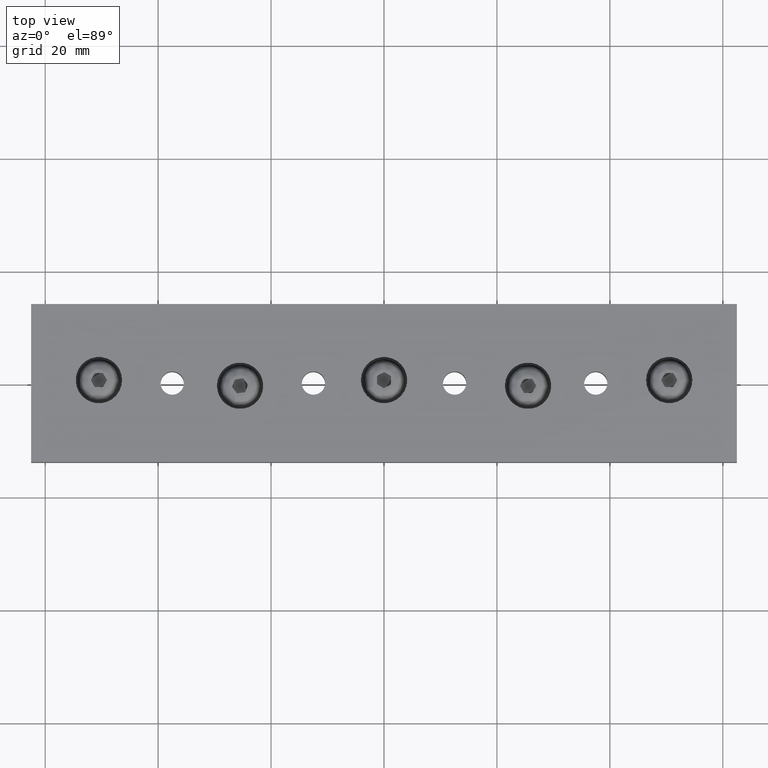
[diagram: clean part render]
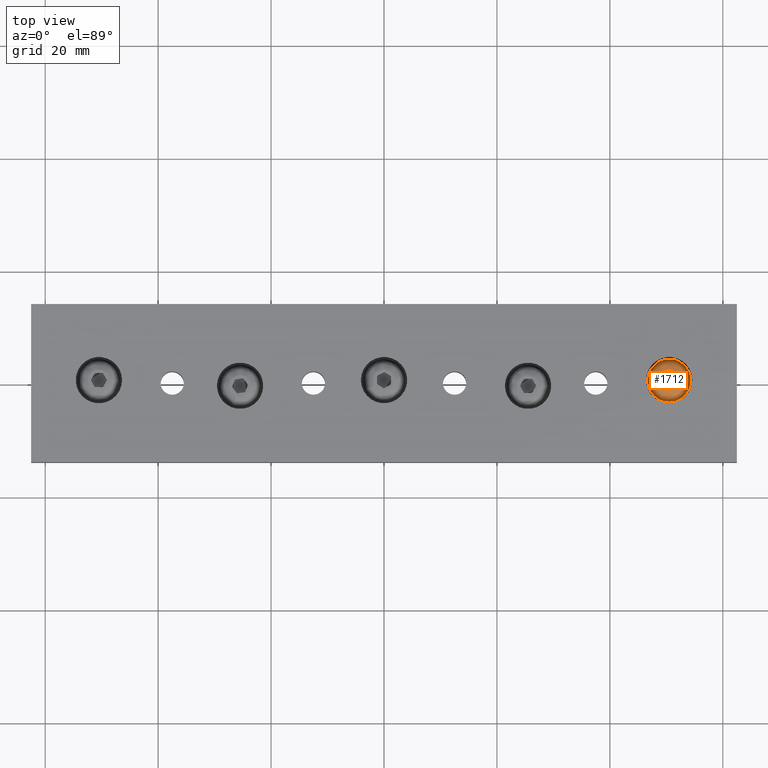
[diagram: same view with one face highlighted and labeled with its STEP entity id]
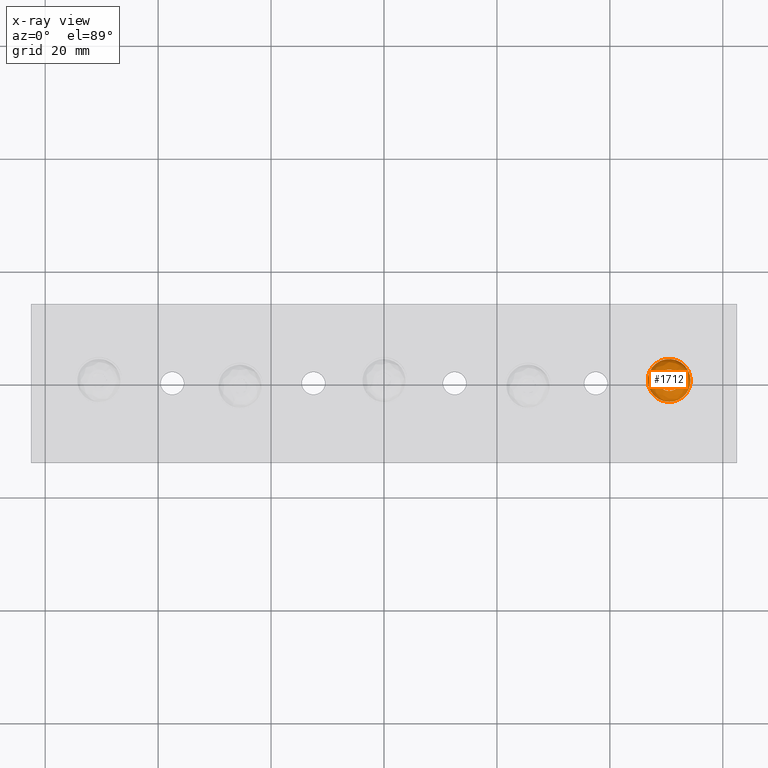
[diagram: x-ray of the same camera — body ghosted, the highlighted face saturated]
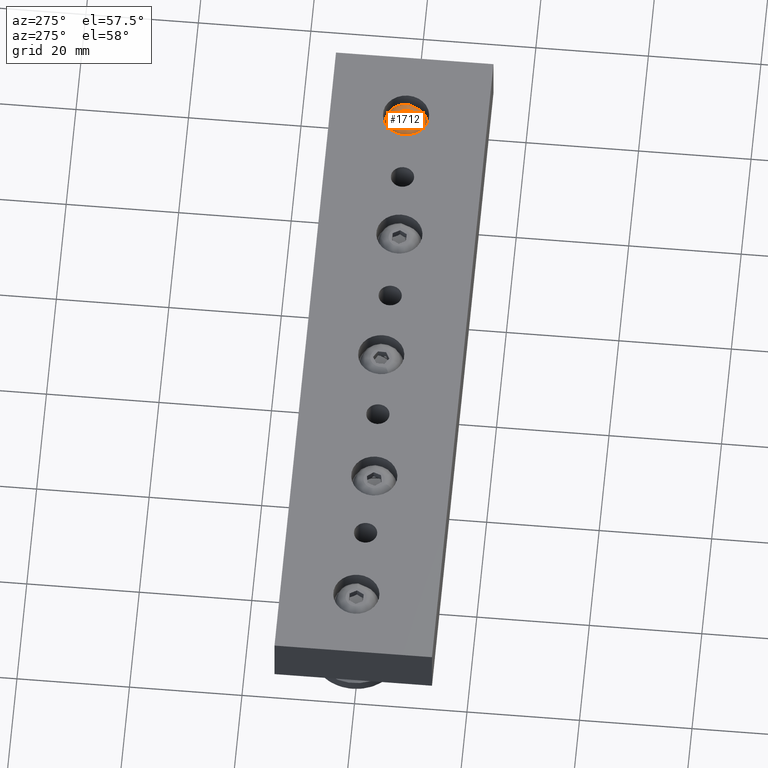
[diagram: same view with one face highlighted and labeled with its STEP entity id]
A machine part, top view. The second image highlights one B-rep face of the part: STEP entity #1712.
The next image is the same camera in x-ray: the body ghosted, the highlighted face saturated — about 0% of this face is hidden behind the body in this view.
A second angle (auxiliary view) of the same face is appended — the face is thin or edge-on in the first view.
In plain terms, the highlighted face is a freeform B-spline surface patch.
Its self-contained STEP definition (entity closure, byte-faithful):
#82=(
BOUNDED_SURFACE()
B_SPLINE_SURFACE(2,2,((#3058,#3059,#3060,#3061,#3062,#3063,#3064,#3065,
#3066),(#3067,#3068,#3069,#3070,#3071,#3072,#3073,#3074,#3075),(#3076,#3077,
#3078,#3079,#3080,#3081,#3082,#3083,#3084)),.UNSPECIFIED.,.F.,.T.,.F.)
B_SPLINE_SURFACE_WITH_KNOTS((3,3),(3,2,2,2,3),(-1.5707963267949,4.26615209970119E-17),
(-3.14159265358979,-1.5707963267949,0.,1.5707963267949,3.14159265358979),
 .UNSPECIFIED.)
GEOMETRIC_REPRESENTATION_ITEM()
RATIONAL_B_SPLINE_SURFACE(((1.,0.707106781186548,1.,0.707106781186548,1.,
0.707106781186548,1.,0.707106781186548,1.),(0.707106781186547,0.5,0.707106781186547,
0.5,0.707106781186547,0.5,0.707106781186547,0.5,0.707106781186547),(1.,
0.707106781186548,1.,0.707106781186548,1.,0.707106781186548,1.,0.707106781186548,
1.)))
REPRESENTATION_ITEM('')
SURFACE()
);
#336=FACE_OUTER_BOUND('',#478,.T.);
#478=EDGE_LOOP('',(#1534,#1535,#1536,#1537,#1538));
#798=CIRCLE('',#2061,3.8);
#799=CIRCLE('',#2062,3.8);
#800=CIRCLE('',#2063,1.9);
#801=CIRCLE('',#2064,1.9);
#926=VERTEX_POINT('',#3085);
#927=VERTEX_POINT('',#3086);
#928=VERTEX_POINT('',#3089);
#1132=EDGE_CURVE('',#926,#927,#798,.T.);
#1133=EDGE_CURVE('',#927,#926,#799,.T.);
#1134=EDGE_CURVE('',#926,#928,#800,.T.);
#1135=EDGE_CURVE('',#928,#928,#801,.T.);
#1534=ORIENTED_EDGE('',*,*,#1132,.T.);
#1535=ORIENTED_EDGE('',*,*,#1133,.T.);
#1536=ORIENTED_EDGE('',*,*,#1134,.T.);
#1537=ORIENTED_EDGE('',*,*,#1135,.T.);
#1538=ORIENTED_EDGE('',*,*,#1134,.F.);
#1712=ADVANCED_FACE('',(#336),#82,.F.);
#2061=AXIS2_PLACEMENT_3D('',#3087,#2574,#2575);
#2062=AXIS2_PLACEMENT_3D('',#3088,#2576,#2577);
#2063=AXIS2_PLACEMENT_3D('',#3090,#2578,#2579);
#2064=AXIS2_PLACEMENT_3D('',#3091,#2580,#2581);
#2574=DIRECTION('center_axis',(-1.,-1.98581040552559E-17,0.));
#2575=DIRECTION('ref_axis',(0.,-1.,1.22464679914735E-16));
#2576=DIRECTION('center_axis',(-1.,-1.98581040552559E-17,0.));
#2577=DIRECTION('ref_axis',(0.,-1.,1.22464679914735E-16));
#2578=DIRECTION('center_axis',(1.98581040552559E-17,-1.,-1.22464679914735E-16));
#2579=DIRECTION('ref_axis',(0.,-1.22464679914735E-16,1.));
#2580=DIRECTION('center_axis',(1.,1.98581040552559E-17,0.));
#2581=DIRECTION('ref_axis',(1.98581040552559E-17,-1.,1.22464679914735E-16));
#3058=CARTESIAN_POINT('Ctrl Pts',(-2.19999999999999,-1.62836453253098E-16,
1.9));
#3059=CARTESIAN_POINT('Ctrl Pts',(-2.19999999999999,-1.9,1.9));
#3060=CARTESIAN_POINT('Ctrl Pts',(-2.19999999999999,-1.9,0.));
#3061=CARTESIAN_POINT('Ctrl Pts',(-2.19999999999999,-1.9,-1.9));
#3062=CARTESIAN_POINT('Ctrl Pts',(-2.19999999999999,-1.62836453253098E-16,
-1.9));
#3063=CARTESIAN_POINT('Ctrl Pts',(-2.19999999999999,1.9,-1.9));
#3064=CARTESIAN_POINT('Ctrl Pts',(-2.19999999999999,1.9,0.));
#3065=CARTESIAN_POINT('Ctrl Pts',(-2.19999999999999,1.9,1.9));
#3066=CARTESIAN_POINT('Ctrl Pts',(-2.19999999999999,-1.62836453253098E-16,
1.9));
#3067=CARTESIAN_POINT('Ctrl Pts',(-2.19999999999999,-1.62836453253098E-16,
3.8));
#3068=CARTESIAN_POINT('Ctrl Pts',(-2.19999999999999,-3.8,3.8));
#3069=CARTESIAN_POINT('Ctrl Pts',(-2.19999999999999,-3.8,0.));
#3070=CARTESIAN_POINT('Ctrl Pts',(-2.19999999999999,-3.8,-3.8));
#3071=CARTESIAN_POINT('Ctrl Pts',(-2.19999999999999,-1.62836453253098E-16,
-3.8));
#3072=CARTESIAN_POINT('Ctrl Pts',(-2.19999999999999,3.8,-3.8));
#3073=CARTESIAN_POINT('Ctrl Pts',(-2.19999999999999,3.8,0.));
#3074=CARTESIAN_POINT('Ctrl Pts',(-2.19999999999999,3.8,3.8));
#3075=CARTESIAN_POINT('Ctrl Pts',(-2.19999999999999,-1.62836453253098E-16,
3.8));
#3076=CARTESIAN_POINT('Ctrl Pts',(-0.299999999999994,-1.25106055548112E-16,
3.8));
#3077=CARTESIAN_POINT('Ctrl Pts',(-0.299999999999994,-3.8,3.8));
#3078=CARTESIAN_POINT('Ctrl Pts',(-0.299999999999994,-3.8,0.));
#3079=CARTESIAN_POINT('Ctrl Pts',(-0.299999999999994,-3.8,-3.8));
#3080=CARTESIAN_POINT('Ctrl Pts',(-0.299999999999994,-1.25106055548112E-16,
-3.8));
#3081=CARTESIAN_POINT('Ctrl Pts',(-0.299999999999994,3.8,-3.8));
#3082=CARTESIAN_POINT('Ctrl Pts',(-0.299999999999994,3.8,0.));
#3083=CARTESIAN_POINT('Ctrl Pts',(-0.299999999999994,3.8,3.8));
#3084=CARTESIAN_POINT('Ctrl Pts',(-0.299999999999994,-1.25106055548112E-16,
3.8));
#3085=CARTESIAN_POINT('',(-0.299999999999994,-5.90471839224107E-16,3.8));
#3086=CARTESIAN_POINT('',(-0.299999999999994,-3.8,-4.65365783675994E-16));
#3087=CARTESIAN_POINT('Origin',(-0.299999999999994,-1.25106055548112E-16,
0.));
#3088=CARTESIAN_POINT('Origin',(-0.299999999999994,-1.25106055548112E-16,
0.));
#3089=CARTESIAN_POINT('',(-2.19999999999999,-3.95519345091096E-16,1.9));
#3090=CARTESIAN_POINT('Origin',(-0.299999999999994,-3.57788947386109E-16,
1.9));
#3091=CARTESIAN_POINT('Origin',(-2.19999999999999,-1.62836453253098E-16,
0.));